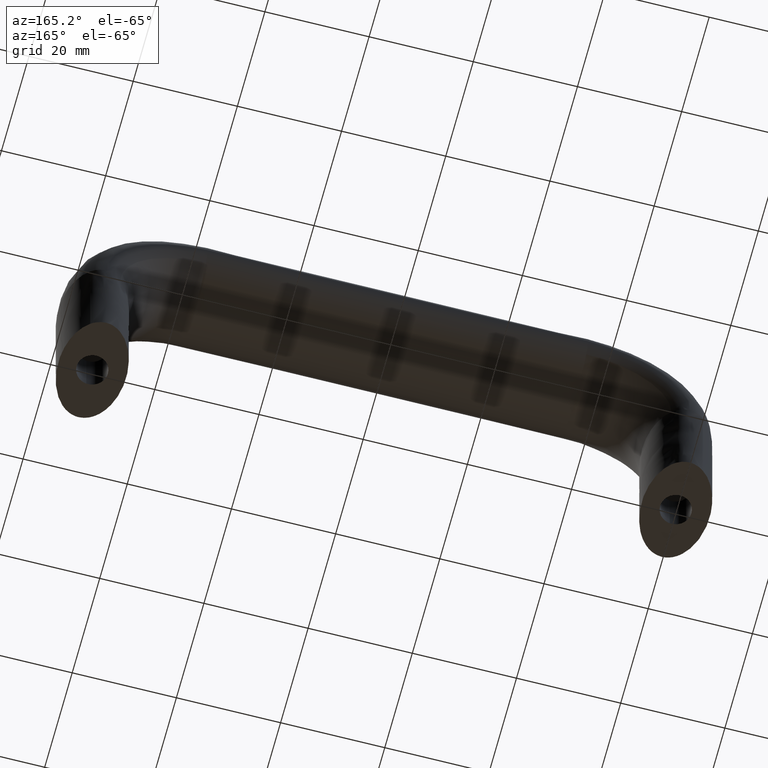
[diagram: clean part render]
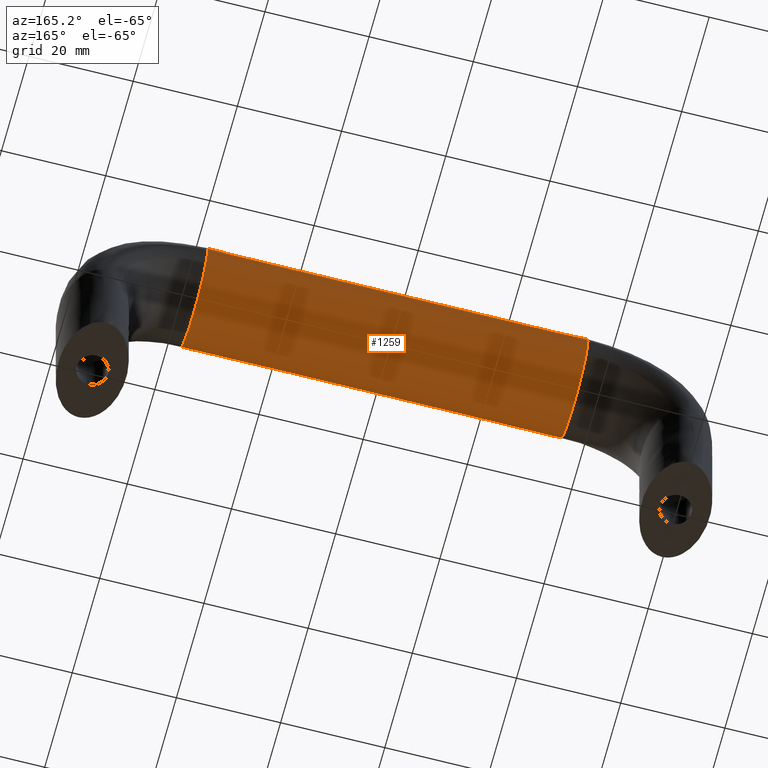
[diagram: same view with one face highlighted and labeled with its STEP entity id]
A machine part, auxiliary view. The second image highlights one B-rep face of the part: STEP entity #1259.
In plain terms, the highlighted face is a freeform B-spline surface patch.
Its self-contained STEP definition (entity closure, byte-faithful):
#750=CARTESIAN_POINT('',(92.500006999999997,8.755444309245860,39.370790612531621));
#751=VERTEX_POINT('',#750);
#765=CARTESIAN_POINT('',(92.500006999999997,10.0,42.500007999999823));
#766=VERTEX_POINT('',#765);
#767=CARTESIAN_POINT('',(92.500006999999997,8.755444309245860,39.370790612531621));
#768=CARTESIAN_POINT('',(92.500006999999997,9.558561397047676,40.326129193033012));
#769=CARTESIAN_POINT('',(92.500006999999997,10.0,41.410922546584978));
#770=CARTESIAN_POINT('',(92.500006999999997,10.0,42.500007999999823));
#771=B_SPLINE_CURVE_WITH_KNOTS('',3,(#767,#768,#769,#770),.UNSPECIFIED.,.F.,.U.,(4,4),(0.419999999987485,0.500000000000000),.UNSPECIFIED.);
#772=EDGE_CURVE('',#751,#766,#771,.T.);
#774=CARTESIAN_POINT('',(92.500006999999997,9.039503756796908,45.265149685499040));
#775=VERTEX_POINT('',#774);
#776=CARTESIAN_POINT('',(92.500006999999997,10.0,42.500007999999823));
#777=CARTESIAN_POINT('',(92.500006999999997,10.0,43.452957771672999));
#778=CARTESIAN_POINT('',(92.500006999999997,9.662023569660605,44.402621404389073));
#779=CARTESIAN_POINT('',(92.500006999999997,9.039503756796908,45.265149685499040));
#780=B_SPLINE_CURVE_WITH_KNOTS('',3,(#776,#777,#778,#779),.UNSPECIFIED.,.F.,.U.,(4,4),(0.500000000000000,0.570000000006190),.UNSPECIFIED.);
#781=EDGE_CURVE('',#766,#775,#780,.T.);
#783=CARTESIAN_POINT('',(92.500006999999997,-10.0,42.500007999999823));
#784=VERTEX_POINT('',#783);
#899=CARTESIAN_POINT('',(92.500006999999997,-10.0,42.500007999999823));
#900=CARTESIAN_POINT('',(92.500006999999997,-10.0,40.798311979305353));
#901=CARTESIAN_POINT('',(92.500006999999997,-8.922269036098131,39.107094718038447));
#902=CARTESIAN_POINT('',(92.500006999999997,-5.219866587632820,36.700533126536001));
#903=CARTESIAN_POINT('',(92.500006999999997,-2.617993877991495,36.000007999999802));
#904=CARTESIAN_POINT('',(92.500006999999997,2.617993877991495,36.000007999999802));
#905=CARTESIAN_POINT('',(92.500006999999997,5.219866587632830,36.700533126536051));
#906=CARTESIAN_POINT('',(92.500006999999997,7.737500252403888,38.336995008637210));
#907=CARTESIAN_POINT('',(92.500006999999997,8.303690947259184,38.833412660882829));
#908=CARTESIAN_POINT('',(92.500006999999997,8.755444309245860,39.370790612531621));
#909=B_SPLINE_CURVE_WITH_KNOTS('',3,(#899,#900,#901,#902,#903,#904,#905,#906,#907,#908),.UNSPECIFIED.,.F.,.U.,(4,2,2,2,4),(0.0,0.125000000000000,0.250000000000000,0.375000000000000,0.419999999987485),.UNSPECIFIED.);
#910=EDGE_CURVE('',#784,#751,#909,.T.);
#998=CARTESIAN_POINT('',(19.500000000000000,9.039503756796908,45.265141685499209));
#999=VERTEX_POINT('',#998);
#1000=CARTESIAN_POINT('',(19.500000000000000,9.039503756796908,45.265141685499209));
#1001=CARTESIAN_POINT('',(22.541624094407361,9.039503756879462,45.276559360533618));
#1002=CARTESIAN_POINT('',(25.583333916656851,9.039503756879462,45.265149685384657));
#1003=CARTESIAN_POINT('',(31.666667833343201,9.039503756879462,45.265149685384657));
#1004=CARTESIAN_POINT('',(34.708334791656803,9.039503756879462,45.265149685384657));
#1005=CARTESIAN_POINT('',(43.833335666686352,9.039503756879462,45.265149685384657));
#1006=CARTESIAN_POINT('',(49.916669583365191,9.039503756879462,45.265149685384657));
#1007=CARTESIAN_POINT('',(62.083337416634912,9.039503756879462,45.265149685384657));
#1008=CARTESIAN_POINT('',(68.166671333374595,9.039503756879462,45.265149685384657));
#1009=CARTESIAN_POINT('',(77.291672208312789,9.039503756879462,45.265149685384657));
#1010=CARTESIAN_POINT('',(80.333339166708299,9.039503756879462,45.265149685384657));
#1011=CARTESIAN_POINT('',(86.416673083291599,9.039503756879462,45.265149685384657));
#1012=CARTESIAN_POINT('',(89.458382959359227,9.039503756879462,45.276567360331192));
#1013=CARTESIAN_POINT('',(92.500006999999997,9.039503756796908,45.265149685499040));
#1014=B_SPLINE_CURVE_WITH_KNOTS('',3,(#1000,#1001,#1002,#1003,#1004,#1005,#1006,#1007,#1008,#1009,#1010,#1011,#1012,#1013),.UNSPECIFIED.,.F.,.U.,(4,2,2,2,2,2,4),(0.297515876464408,0.348136907348306,0.398757938232204,0.500000000000000,0.601242061767796,0.651863092651694,0.702484123535592),.UNSPECIFIED.);
#1015=EDGE_CURVE('',#999,#775,#1014,.T.);
#1017=CARTESIAN_POINT('',(19.500000000000000,-10.0,42.499999999999979));
#1018=VERTEX_POINT('',#1017);
#1032=CARTESIAN_POINT('',(19.500000000000000,-10.0,42.499999999999979));
#1033=CARTESIAN_POINT('',(22.541617759291050,-10.0,42.512228599741249));
#1034=CARTESIAN_POINT('',(25.583333916656851,-10.0,42.500007999999823));
#1035=CARTESIAN_POINT('',(31.666667833343201,-10.0,42.500007999999823));
#1036=CARTESIAN_POINT('',(34.708334791656803,-10.0,42.500007999999823));
#1037=CARTESIAN_POINT('',(43.833335666686352,-10.0,42.500007999999823));
#1038=CARTESIAN_POINT('',(49.916669583365191,-10.0,42.500007999999823));
#1039=CARTESIAN_POINT('',(62.083337416634912,-10.0,42.500007999999823));
#1040=CARTESIAN_POINT('',(68.166671333374595,-10.0,42.500007999999823));
#1041=CARTESIAN_POINT('',(77.291672208312789,-10.0,42.500007999999823));
#1042=CARTESIAN_POINT('',(80.333339166708299,-10.0,42.500007999999823));
#1043=CARTESIAN_POINT('',(86.416673083291599,-10.0,42.500007999999823));
#1044=CARTESIAN_POINT('',(89.458389298291507,-10.0,42.512236599509073));
#1045=CARTESIAN_POINT('',(92.500006999999997,-10.0,42.500007999999823));
#1046=B_SPLINE_CURVE_WITH_KNOTS('',3,(#1032,#1033,#1034,#1035,#1036,#1037,#1038,#1039,#1040,#1041,#1042,#1043,#1044,#1045),.UNSPECIFIED.,.F.,.U.,(4,2,2,2,2,2,4),(0.297515876464408,0.348136907348306,0.398757938232204,0.500000000000000,0.601242061767796,0.651863092651694,0.702484123535592),.UNSPECIFIED.);
#1047=EDGE_CURVE('',#1018,#784,#1046,.T.);
#1052=CARTESIAN_POINT('',(19.500000000000000,-10.0,42.499999999999979));
#1053=CARTESIAN_POINT('',(19.500000000000000,-10.0,40.798303979305501));
#1054=CARTESIAN_POINT('',(19.500000000000000,-8.922269036098131,39.107086718038651));
#1055=CARTESIAN_POINT('',(19.500000000000000,-5.219866587632820,36.700525126536199));
#1056=CARTESIAN_POINT('',(19.500000000000000,-2.617993877991495,36.0));
#1057=CARTESIAN_POINT('',(19.500000000000000,2.617993877991495,36.0));
#1058=CARTESIAN_POINT('',(19.500000000000000,5.219866587632830,36.700525126536199));
#1059=CARTESIAN_POINT('',(19.500000000000000,8.922269036098131,39.107086718038651));
#1060=CARTESIAN_POINT('',(19.500000000000000,10.0,40.798303979305501));
#1061=CARTESIAN_POINT('',(19.500000000000000,10.0,43.452949771588877));
#1062=CARTESIAN_POINT('',(19.500000000000000,9.662023569720375,44.402613404221292));
#1063=CARTESIAN_POINT('',(19.500000000000000,9.039503756879462,45.265141685384833));
#1064=CARTESIAN_POINT('',(22.541617759291050,-10.0,42.512228599741249));
#1065=CARTESIAN_POINT('',(22.541613498833300,-10.0,40.811062732241894));
#1066=CARTESIAN_POINT('',(22.541608329581749,-8.922269036098131,39.120447741917850));
#1067=CARTESIAN_POINT('',(22.541599570585799,-5.219866587632820,36.714848938331897));
#1068=CARTESIAN_POINT('',(22.541596648991749,-2.617993877991495,36.014630860976752));
#1069=CARTESIAN_POINT('',(22.541596648991749,2.617993877991495,36.014630860976752));
#1070=CARTESIAN_POINT('',(22.541599570585699,5.219866587632830,36.714848938344304));
#1071=CARTESIAN_POINT('',(22.541608329581852,8.922269036098131,39.120447741906297));
#1072=CARTESIAN_POINT('',(22.541613498833300,10.0,40.811062732241894));
#1073=CARTESIAN_POINT('',(22.541620145147391,10.0,43.464881485540893));
#1074=CARTESIAN_POINT('',(22.541622290367052,9.662023569720375,44.414269112250473));
#1075=CARTESIAN_POINT('',(22.541624094407371,9.039503756879462,45.276559360533618));
#1076=CARTESIAN_POINT('',(25.583333916656851,-10.0,42.500007999999823));
#1077=CARTESIAN_POINT('',(25.583333916656851,-10.0,40.798311979305353));
#1078=CARTESIAN_POINT('',(25.583333916656851,-8.922269036098131,39.107094718038447));
#1079=CARTESIAN_POINT('',(25.583333916656851,-5.219866587632820,36.700533126536001));
#1080=CARTESIAN_POINT('',(25.583333916656851,-2.617993877991495,36.000007999999802));
#1081=CARTESIAN_POINT('',(25.583333916656851,2.617993877991495,36.000007999999802));
#1082=CARTESIAN_POINT('',(25.583333916656851,5.219866587632830,36.700533126536051));
#1083=CARTESIAN_POINT('',(25.583333916656851,8.922269036098131,39.107094718038447));
#1084=CARTESIAN_POINT('',(25.583333916656851,10.0,40.798311979305353));
#1085=CARTESIAN_POINT('',(25.583333916656859,10.0,43.452957771588729));
#1086=CARTESIAN_POINT('',(25.583333916656859,9.662023569720375,44.402621404221122));
#1087=CARTESIAN_POINT('',(25.583333916656859,9.039503756879462,45.265149685384657));
#1088=CARTESIAN_POINT('',(31.666667833343201,-10.0,42.500007999999823));
#1089=CARTESIAN_POINT('',(31.666667833343201,-10.0,40.798311979305353));
#1090=CARTESIAN_POINT('',(31.666667833343201,-8.922269036098131,39.107094718038447));
#1091=CARTESIAN_POINT('',(31.666667833343201,-5.219866587632820,36.700533126536001));
#1092=CARTESIAN_POINT('',(31.666667833343201,-2.617993877991495,36.000007999999802));
#1093=CARTESIAN_POINT('',(31.666667833343201,2.617993877991495,36.000007999999802));
#1094=CARTESIAN_POINT('',(31.666667833343201,5.219866587632830,36.700533126536051));
#1095=CARTESIAN_POINT('',(31.666667833343201,8.922269036098131,39.107094718038447));
#1096=CARTESIAN_POINT('',(31.666667833343201,10.0,40.798311979305353));
#1097=CARTESIAN_POINT('',(31.666667833343201,10.0,43.452957771588729));
#1098=CARTESIAN_POINT('',(31.666667833343201,9.662023569720375,44.402621404221122));
#1099=CARTESIAN_POINT('',(31.666667833343201,9.039503756879462,45.265149685384657));
#1100=CARTESIAN_POINT('',(34.708334791656803,-10.0,42.500007999999823));
#1101=CARTESIAN_POINT('',(34.708334791656803,-10.0,40.798311979305353));
#1102=CARTESIAN_POINT('',(34.708334791656803,-8.922269036098131,39.107094718038447));
#1103=CARTESIAN_POINT('',(34.708334791656803,-5.219866587632820,36.700533126536001));
#1104=CARTESIAN_POINT('',(34.708334791656803,-2.617993877991495,36.000007999999802));
#1105=CARTESIAN_POINT('',(34.708334791656803,2.617993877991495,36.000007999999802));
#1106=CARTESIAN_POINT('',(34.708334791656803,5.219866587632830,36.700533126536051));
#1107=CARTESIAN_POINT('',(34.708334791656803,8.922269036098131,39.107094718038447));
#1108=CARTESIAN_POINT('',(34.708334791656803,10.0,40.798311979305353));
#1109=CARTESIAN_POINT('',(34.708334791656803,10.0,43.452957771588729));
#1110=CARTESIAN_POINT('',(34.708334791656803,9.662023569720375,44.402621404221122));
#1111=CARTESIAN_POINT('',(34.708334791656803,9.039503756879462,45.265149685384657));
#1112=CARTESIAN_POINT('',(43.833335666686352,-10.0,42.500007999999823));
#1113=CARTESIAN_POINT('',(43.833335666686352,-10.0,40.798311979305353));
#1114=CARTESIAN_POINT('',(43.833335666686352,-8.922269036098131,39.107094718038447));
#1115=CARTESIAN_POINT('',(43.833335666686352,-5.219866587632820,36.700533126536001));
#1116=CARTESIAN_POINT('',(43.833335666686352,-2.617993877991495,36.000007999999802));
#1117=CARTESIAN_POINT('',(43.833335666686352,2.617993877991495,36.000007999999802));
#1118=CARTESIAN_POINT('',(43.833335666686352,5.219866587632830,36.700533126536051));
#1119=CARTESIAN_POINT('',(43.833335666686352,8.922269036098131,39.107094718038447));
#1120=CARTESIAN_POINT('',(43.833335666686352,10.0,40.798311979305353));
#1121=CARTESIAN_POINT('',(43.833335666686352,10.0,43.452957771588729));
#1122=CARTESIAN_POINT('',(43.833335666686352,9.662023569720375,44.402621404221122));
#1123=CARTESIAN_POINT('',(43.833335666686352,9.039503756879462,45.265149685384657));
#1124=CARTESIAN_POINT('',(49.916669583365191,-10.0,42.500007999999823));
#1125=CARTESIAN_POINT('',(49.916669583365191,-10.0,40.798311979305353));
#1126=CARTESIAN_POINT('',(49.916669583365191,-8.922269036098131,39.107094718038447));
#1127=CARTESIAN_POINT('',(49.916669583365191,-5.219866587632820,36.700533126536001));
#1128=CARTESIAN_POINT('',(49.916669583365191,-2.617993877991495,36.000007999999802));
#1129=CARTESIAN_POINT('',(49.916669583365191,2.617993877991495,36.000007999999802));
#1130=CARTESIAN_POINT('',(49.916669583365191,5.219866587632830,36.700533126536051));
#1131=CARTESIAN_POINT('',(49.916669583365191,8.922269036098131,39.107094718038447));
#1132=CARTESIAN_POINT('',(49.916669583365191,10.0,40.798311979305353));
#1133=CARTESIAN_POINT('',(49.916669583365191,10.0,43.452957771588729));
#1134=CARTESIAN_POINT('',(49.916669583365191,9.662023569720375,44.402621404221122));
#1135=CARTESIAN_POINT('',(49.916669583365191,9.039503756879462,45.265149685384657));
#1136=CARTESIAN_POINT('',(62.083337416634912,-10.0,42.500007999999823));
#1137=CARTESIAN_POINT('',(62.083337416634912,-10.0,40.798311979305353));
#1138=CARTESIAN_POINT('',(62.083337416634912,-8.922269036098131,39.107094718038447));
#1139=CARTESIAN_POINT('',(62.083337416634912,-5.219866587632820,36.700533126536001));
#1140=CARTESIAN_POINT('',(62.083337416634912,-2.617993877991495,36.000007999999802));
#1141=CARTESIAN_POINT('',(62.083337416634912,2.617993877991495,36.000007999999802));
#1142=CARTESIAN_POINT('',(62.083337416634912,5.219866587632830,36.700533126536051));
#1143=CARTESIAN_POINT('',(62.083337416634912,8.922269036098131,39.107094718038447));
#1144=CARTESIAN_POINT('',(62.083337416634912,10.0,40.798311979305353));
#1145=CARTESIAN_POINT('',(62.083337416634912,10.0,43.452957771588729));
#1146=CARTESIAN_POINT('',(62.083337416634912,9.662023569720375,44.402621404221122));
#1147=CARTESIAN_POINT('',(62.083337416634912,9.039503756879462,45.265149685384657));
#1148=CARTESIAN_POINT('',(68.166671333374595,-10.0,42.500007999999823));
#1149=CARTESIAN_POINT('',(68.166671333374595,-10.0,40.798311979305353));
#1150=CARTESIAN_POINT('',(68.166671333374595,-8.922269036098131,39.107094718038447));
#1151=CARTESIAN_POINT('',(68.166671333374595,-5.219866587632820,36.700533126536001));
#1152=CARTESIAN_POINT('',(68.166671333374595,-2.617993877991495,36.000007999999802));
#1153=CARTESIAN_POINT('',(68.166671333374595,2.617993877991495,36.000007999999802));
#1154=CARTESIAN_POINT('',(68.166671333374595,5.219866587632830,36.700533126536051));
#1155=CARTESIAN_POINT('',(68.166671333374595,8.922269036098131,39.107094718038447));
#1156=CARTESIAN_POINT('',(68.166671333374595,10.0,40.798311979305353));
#1157=CARTESIAN_POINT('',(68.166671333374595,10.0,43.452957771588729));
#1158=CARTESIAN_POINT('',(68.166671333374595,9.662023569720375,44.402621404221122));
#1159=CARTESIAN_POINT('',(68.166671333374595,9.039503756879462,45.265149685384657));
#1160=CARTESIAN_POINT('',(77.291672208312789,-10.0,42.500007999999823));
#1161=CARTESIAN_POINT('',(77.291672208312789,-10.0,40.798311979305353));
#1162=CARTESIAN_POINT('',(77.291672208312789,-8.922269036098131,39.107094718038447));
#1163=CARTESIAN_POINT('',(77.291672208312789,-5.219866587632820,36.700533126536001));
#1164=CARTESIAN_POINT('',(77.291672208312789,-2.617993877991495,36.000007999999802));
#1165=CARTESIAN_POINT('',(77.291672208312789,2.617993877991495,36.000007999999802));
#1166=CARTESIAN_POINT('',(77.291672208312789,5.219866587632830,36.700533126536051));
#1167=CARTESIAN_POINT('',(77.291672208312789,8.922269036098131,39.107094718038447));
#1168=CARTESIAN_POINT('',(77.291672208312789,10.0,40.798311979305353));
#1169=CARTESIAN_POINT('',(77.291672208312789,10.0,43.452957771588729));
#1170=CARTESIAN_POINT('',(77.291672208312789,9.662023569720375,44.402621404221122));
#1171=CARTESIAN_POINT('',(77.291672208312789,9.039503756879462,45.265149685384657));
#1172=CARTESIAN_POINT('',(80.333339166708299,-10.0,42.500007999999823));
#1173=CARTESIAN_POINT('',(80.333339166708299,-10.0,40.798311979305353));
#1174=CARTESIAN_POINT('',(80.333339166708299,-8.922269036098131,39.107094718038447));
#1175=CARTESIAN_POINT('',(80.333339166708299,-5.219866587632820,36.700533126536001));
#1176=CARTESIAN_POINT('',(80.333339166708299,-2.617993877991495,36.000007999999802));
#1177=CARTESIAN_POINT('',(80.333339166708299,2.617993877991495,36.000007999999802));
#1178=CARTESIAN_POINT('',(80.333339166708299,5.219866587632830,36.700533126536051));
#1179=CARTESIAN_POINT('',(80.333339166708299,8.922269036098131,39.107094718038447));
#1180=CARTESIAN_POINT('',(80.333339166708299,10.0,40.798311979305353));
#1181=CARTESIAN_POINT('',(80.333339166708299,10.0,43.452957771588729));
#1182=CARTESIAN_POINT('',(80.333339166708299,9.662023569720375,44.402621404221122));
#1183=CARTESIAN_POINT('',(80.333339166708299,9.039503756879462,45.265149685384657));
#1184=CARTESIAN_POINT('',(86.416673083291599,-10.0,42.500007999999823));
#1185=CARTESIAN_POINT('',(86.416673083291599,-10.0,40.798311979305353));
#1186=CARTESIAN_POINT('',(86.416673083291599,-8.922269036098131,39.107094718038447));
#1187=CARTESIAN_POINT('',(86.416673083291599,-5.219866587632820,36.700533126536001));
#1188=CARTESIAN_POINT('',(86.416673083291599,-2.617993877991495,36.000007999999802));
#1189=CARTESIAN_POINT('',(86.416673083291599,2.617993877991495,36.000007999999802));
#1190=CARTESIAN_POINT('',(86.416673083291599,5.219866587632830,36.700533126536051));
#1191=CARTESIAN_POINT('',(86.416673083291599,8.922269036098131,39.107094718038447));
#1192=CARTESIAN_POINT('',(86.416673083291599,10.0,40.798311979305353));
#1193=CARTESIAN_POINT('',(86.416673083291599,10.0,43.452957771588729));
#1194=CARTESIAN_POINT('',(86.416673083291599,9.662023569720375,44.402621404221122));
#1195=CARTESIAN_POINT('',(86.416673083291599,9.039503756879462,45.265149685384657));
#1196=CARTESIAN_POINT('',(89.458389298291507,-10.0,42.512236599509073));
#1197=CARTESIAN_POINT('',(89.458393561243994,-10.0,40.811070731989702));
#1198=CARTESIAN_POINT('',(89.458398733329602,-8.922269036098131,39.120455741641301));
#1199=CARTESIAN_POINT('',(89.458407496856097,-5.219866587632820,36.714856938014101));
#1200=CARTESIAN_POINT('',(89.458410419894989,-2.617993877991495,36.014638860645150));
#1201=CARTESIAN_POINT('',(89.458410419894989,2.617993877991495,36.014638860645150));
#1202=CARTESIAN_POINT('',(89.458407496856196,5.219866587632830,36.714856938026500));
#1203=CARTESIAN_POINT('',(89.458398733329503,8.922269036098131,39.120455741629748));
#1204=CARTESIAN_POINT('',(89.458393561243994,10.0,40.811070731989702));
#1205=CARTESIAN_POINT('',(89.458386911038090,10.0,43.464889485319922));
#1206=CARTESIAN_POINT('',(89.458384764519650,9.662023569720375,44.414277112039557));
#1207=CARTESIAN_POINT('',(89.458382959359227,9.039503756879462,45.276567360331192));
#1208=CARTESIAN_POINT('',(92.500006999999997,-10.0,42.500007999999823));
#1209=CARTESIAN_POINT('',(92.500006999999997,-10.0,40.798311979305353));
#1210=CARTESIAN_POINT('',(92.500006999999997,-8.922269036098131,39.107094718038447));
#1211=CARTESIAN_POINT('',(92.500006999999997,-5.219866587632820,36.700533126536001));
#1212=CARTESIAN_POINT('',(92.500006999999997,-2.617993877991495,36.000007999999802));
#1213=CARTESIAN_POINT('',(92.500006999999997,2.617993877991495,36.000007999999802));
#1214=CARTESIAN_POINT('',(92.500006999999997,5.219866587632830,36.700533126536051));
#1215=CARTESIAN_POINT('',(92.500006999999997,8.922269036098131,39.107094718038447));
#1216=CARTESIAN_POINT('',(92.500006999999997,10.0,40.798311979305353));
#1217=CARTESIAN_POINT('',(92.500006999999997,10.0,43.452957771588729));
#1218=CARTESIAN_POINT('',(92.500006999999997,9.662023569720375,44.402621404221122));
#1219=CARTESIAN_POINT('',(92.500006999999997,9.039503756879462,45.265149685384657));
#1220=B_SPLINE_SURFACE_WITH_KNOTS('',3,3,((#1052,#1064,#1076,#1088,#1100,#1112,#1124,#1136,#1148,#1160,#1172,#1184,#1196,#1208),(#1053,#1065,#1077,#1089,#1101,#1113,#1125,#1137,#1149,#1161,#1173,#1185,#1197,#1209),(#1054,#1066,#1078,#1090,#1102,#1114,#1126,#1138,#1150,#1162,#1174,#1186,#1198,#1210),(#1055,#1067,#1079,#1091,#1103,#1115,#1127,#1139,#1151,#1163,#1175,#1187,#1199,#1211),(#1056,#1068,#1080,#1092,#1104,#1116,#1128,#1140,#1152,#1164,#1176,#1188,#1200,#1212),(#1057,#1069,#1081,#1093,#1105,#1117,#1129,#1141,#1153,#1165,#1177,#1189,#1201,#1213),(#1058,#1070,#1082,#1094,#1106,#1118,#1130,#1142,#1154,#1166,#1178,#1190,#1202,#1214),(#1059,#1071,#1083,#1095,#1107,#1119,#1131,#1143,#1155,#1167,#1179,#1191,#1203,#1215),(#1060,#1072,#1084,#1096,#1108,#1120,#1132,#1144,#1156,#1168,#1180,#1192,#1204,#1216),(#1061,#1073,#1085,#1097,#1109,#1121,#1133,#1145,#1157,#1169,#1181,#1193,#1205,#1217),(#1062,#1074,#1086,#1098,#1110,#1122,#1134,#1146,#1158,#1170,#1182,#1194,#1206,#1218),(#1063,#1075,#1087,#1099,#1111,#1123,#1135,#1147,#1159,#1171,#1183,#1195,#1207,#1219)),.UNSPECIFIED.,.F.,.F.,.U.,(4,2,2,2,2,4),(4,2,2,2,2,2,4),(0.0,7.693621656700123,15.387243313400250,23.080864970100372,30.774486626800488,35.082914754552547),(0.0,9.125081906743707,18.250163813487418,36.500327626974851,54.750491440462277,63.875573347206007,73.000655253949702),.UNSPECIFIED.);
#1221=ORIENTED_EDGE('',*,*,#781,.F.);
#1222=ORIENTED_EDGE('',*,*,#772,.F.);
#1223=ORIENTED_EDGE('',*,*,#910,.F.);
#1224=ORIENTED_EDGE('',*,*,#1047,.F.);
#1225=CARTESIAN_POINT('',(19.500000000000000,8.755444309245862,39.370782612531798));
#1226=VERTEX_POINT('',#1225);
#1227=CARTESIAN_POINT('',(19.500000000000000,-10.0,42.499999999999979));
#1228=CARTESIAN_POINT('',(19.500000000000000,-10.0,40.798303979305501));
#1229=CARTESIAN_POINT('',(19.500000000000000,-8.922269036098131,39.107086718038651));
#1230=CARTESIAN_POINT('',(19.500000000000000,-5.219866587632820,36.700525126536199));
#1231=CARTESIAN_POINT('',(19.500000000000000,-2.617993877991495,36.0));
#1232=CARTESIAN_POINT('',(19.500000000000000,2.617993877991495,36.0));
#1233=CARTESIAN_POINT('',(19.500000000000000,5.219866587632830,36.700525126536199));
#1234=CARTESIAN_POINT('',(19.500000000000000,7.737500252403889,38.336987008637387));
#1235=CARTESIAN_POINT('',(19.500000000000000,8.303690947259186,38.833404660883012));
#1236=CARTESIAN_POINT('',(19.500000000000000,8.755444309245862,39.370782612531798));
#1237=B_SPLINE_CURVE_WITH_KNOTS('',3,(#1227,#1228,#1229,#1230,#1231,#1232,#1233,#1234,#1235,#1236),.UNSPECIFIED.,.F.,.U.,(4,2,2,2,4),(0.0,0.125000000000000,0.250000000000000,0.375000000000000,0.419999999987485),.UNSPECIFIED.);
#1238=EDGE_CURVE('',#1018,#1226,#1237,.T.);
#1239=ORIENTED_EDGE('',*,*,#1238,.T.);
#1240=CARTESIAN_POINT('',(19.500000000000000,10.0,42.499999999999979));
#1241=VERTEX_POINT('',#1240);
#1242=CARTESIAN_POINT('',(19.500000000000000,8.755444309245862,39.370782612531798));
#1243=CARTESIAN_POINT('',(19.500000000000000,9.558561397047676,40.326121193033188));
#1244=CARTESIAN_POINT('',(19.500000000000000,10.0,41.410914546585133));
#1245=CARTESIAN_POINT('',(19.500000000000000,10.0,42.499999999999979));
#1246=B_SPLINE_CURVE_WITH_KNOTS('',3,(#1242,#1243,#1244,#1245),.UNSPECIFIED.,.F.,.U.,(4,4),(0.419999999987485,0.500000000000000),.UNSPECIFIED.);
#1247=EDGE_CURVE('',#1226,#1241,#1246,.T.);
#1248=ORIENTED_EDGE('',*,*,#1247,.T.);
#1249=CARTESIAN_POINT('',(19.500000000000000,10.0,42.499999999999979));
#1250=CARTESIAN_POINT('',(19.500000000000000,10.0,43.452949771673147));
#1251=CARTESIAN_POINT('',(19.500000000000000,9.662023569660605,44.402613404389228));
#1252=CARTESIAN_POINT('',(19.500000000000000,9.039503756796908,45.265141685499209));
#1253=B_SPLINE_CURVE_WITH_KNOTS('',3,(#1249,#1250,#1251,#1252),.UNSPECIFIED.,.F.,.U.,(4,4),(0.500000000000000,0.570000000006190),.UNSPECIFIED.);
#1254=EDGE_CURVE('',#1241,#999,#1253,.T.);
#1255=ORIENTED_EDGE('',*,*,#1254,.T.);
#1256=ORIENTED_EDGE('',*,*,#1015,.T.);
#1257=EDGE_LOOP('',(#1221,#1222,#1223,#1224,#1239,#1248,#1255,#1256));
#1258=FACE_OUTER_BOUND('',#1257,.T.);
#1259=ADVANCED_FACE('',(#1258),#1220,.T.);